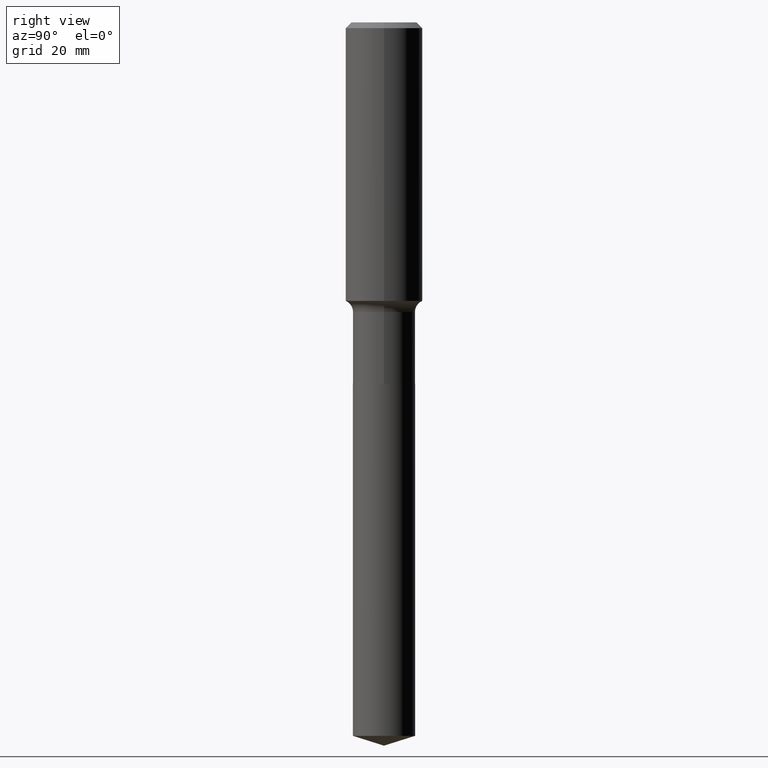
[diagram: clean part render]
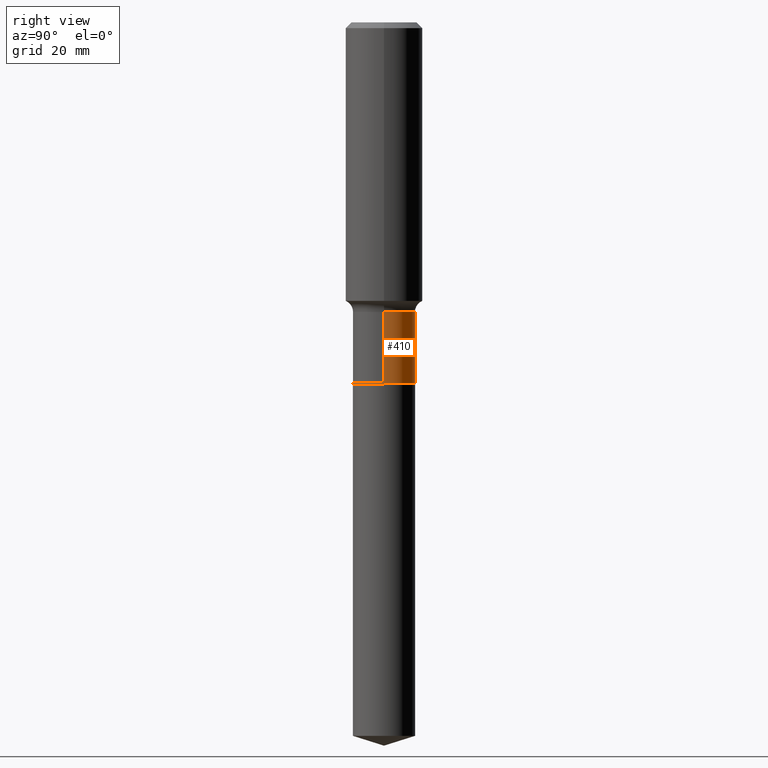
[diagram: same view with one face highlighted and labeled with its STEP entity id]
A machine part, right view. The second image highlights one B-rep face of the part: STEP entity #410.
In plain terms, the highlighted cylindrical surface (edge-blend (fillet) strip) has radius 5.1308 mm, axis along (-0, 0, 1).
Its self-contained STEP definition (entity closure, byte-faithful):
#9 = DIRECTION ( 'NONE',  ( -2.445468806185136597E-29, 3.491481338843145583E-15, 1.000000000000000000 ) ) ;
#44 = DIRECTION ( 'NONE',  ( 1.000000000000000000, -6.982962677686269866E-15, 0.000000000000000000 ) ) ;
#66 = AXIS2_PLACEMENT_3D ( 'NONE', #398, #217, #180 ) ;
#77 = EDGE_CURVE ( 'NONE', #399, #268, #441, .T. ) ;
#84 = EDGE_CURVE ( 'NONE', #399, #381, #300, .T. ) ;
#108 = CARTESIAN_POINT ( 'NONE',  ( -0.2019999999999999851, 1.435296326235402270E-15, -9.936248882314910004E-30 ) ) ;
#109 = AXIS2_PLACEMENT_3D ( 'NONE', #397, #9, #44 ) ;
#123 = ORIENTED_EDGE ( 'NONE', *, *, #290, .T. ) ;
#133 = CIRCLE ( 'NONE', #200, 0.2019999999999999574 ) ;
#141 = ORIENTED_EDGE ( 'NONE', *, *, #84, .T. ) ;
#150 = VERTEX_POINT ( 'NONE', #395 ) ;
#180 = DIRECTION ( 'NONE',  ( 1.000000000000000000, -6.982962677686267499E-15, 4.876176775795936353E-29 ) ) ;
#192 = ORIENTED_EDGE ( 'NONE', *, *, #363, .F. ) ;
#195 = EDGE_LOOP ( 'NONE', ( #141, #123, #192, #371 ) ) ;
#200 = AXIS2_PLACEMENT_3D ( 'NONE', #297, #469, #476 ) ;
#217 = DIRECTION ( 'NONE',  ( -2.445468806185136597E-29, 3.491481338843145583E-15, 1.000000000000000000 ) ) ;
#233 = CARTESIAN_POINT ( 'NONE',  ( 0.2019999999999999574, -7.963719785767326580E-15, -1.876900000000000457 ) ) ;
#252 = VECTOR ( 'NONE', #432, 39.37007874015748143 ) ;
#268 = VERTEX_POINT ( 'NONE', #233 ) ;
#289 = CARTESIAN_POINT ( 'NONE',  ( 0.2020000000000000129, -9.584116275124431668E-15, -2.341000000000000192 ) ) ;
#290 = EDGE_CURVE ( 'NONE', #381, #150, #333, .T. ) ;
#297 = CARTESIAN_POINT ( 'NONE',  ( 4.589900402328883540E-29, -6.553161324874701209E-15, -1.876900000000000457 ) ) ;
#300 = CIRCLE ( 'NONE', #109, 0.2020000000000000129 ) ;
#324 = CYLINDRICAL_SURFACE ( 'NONE', #66, 0.2019999999999999851 ) ;
#327 = FACE_OUTER_BOUND ( 'NONE', #195, .T. ) ;
#333 = LINE ( 'NONE', #108, #252 ) ;
#363 = EDGE_CURVE ( 'NONE', #268, #150, #133, .T. ) ;
#371 = ORIENTED_EDGE ( 'NONE', *, *, #77, .F. ) ;
#375 = DIRECTION ( 'NONE',  ( -2.445468806185136877E-29, 3.491481338843145188E-15, 1.000000000000000000 ) ) ;
#381 = VERTEX_POINT ( 'NONE', #429 ) ;
#395 = CARTESIAN_POINT ( 'NONE',  ( -0.2019999999999999574, -5.928063243317850103E-15, -1.876900000000000457 ) ) ;
#397 = CARTESIAN_POINT ( 'NONE',  ( 5.724842475279405733E-29, -8.173557814231804720E-15, -2.341000000000000192 ) ) ;
#398 = CARTESIAN_POINT ( 'NONE',  ( 0.000000000000000000, 0.000000000000000000, 0.000000000000000000 ) ) ;
#399 = VERTEX_POINT ( 'NONE', #289 ) ;
#410 = ADVANCED_FACE ( 'NONE', ( #327 ), #324, .T. ) ;
#420 = CARTESIAN_POINT ( 'NONE',  ( 0.2019999999999999851, -1.410558460892625962E-15, 9.849877087107791198E-30 ) ) ;
#429 = CARTESIAN_POINT ( 'NONE',  ( -0.2020000000000000129, -5.928063243317849314E-15, -2.341000000000000192 ) ) ;
#432 = DIRECTION ( 'NONE',  ( -2.445468806185136877E-29, 3.491481338843145188E-15, 1.000000000000000000 ) ) ;
#441 = LINE ( 'NONE', #420, #448 ) ;
#448 = VECTOR ( 'NONE', #375, 39.37007874015748143 ) ;
#469 = DIRECTION ( 'NONE',  ( -2.445468806185136597E-29, 3.491481338843145583E-15, 1.000000000000000000 ) ) ;
#476 = DIRECTION ( 'NONE',  ( 1.000000000000000000, -6.982962677686266711E-15, 0.000000000000000000 ) ) ;